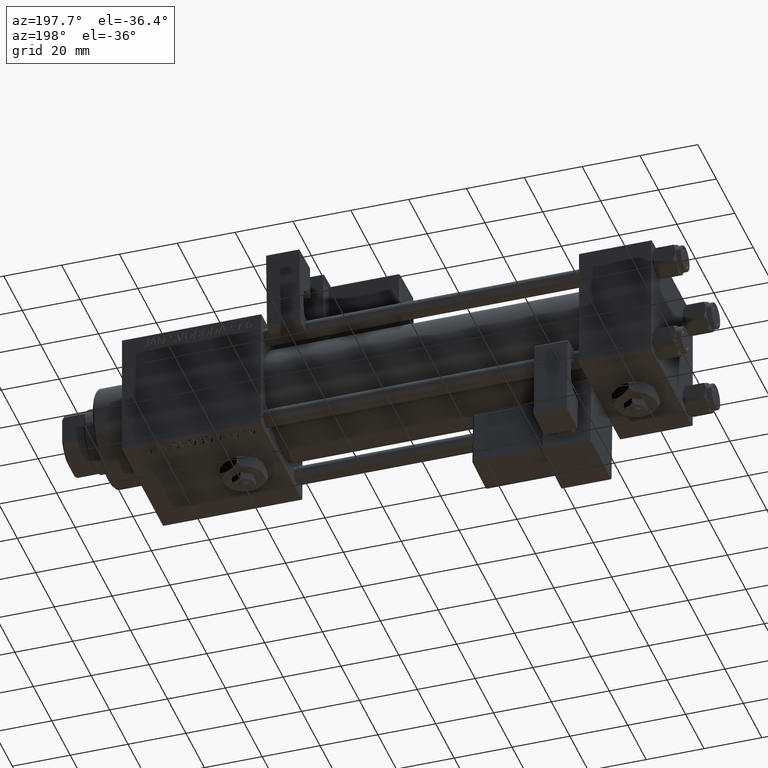
[diagram: clean part render]
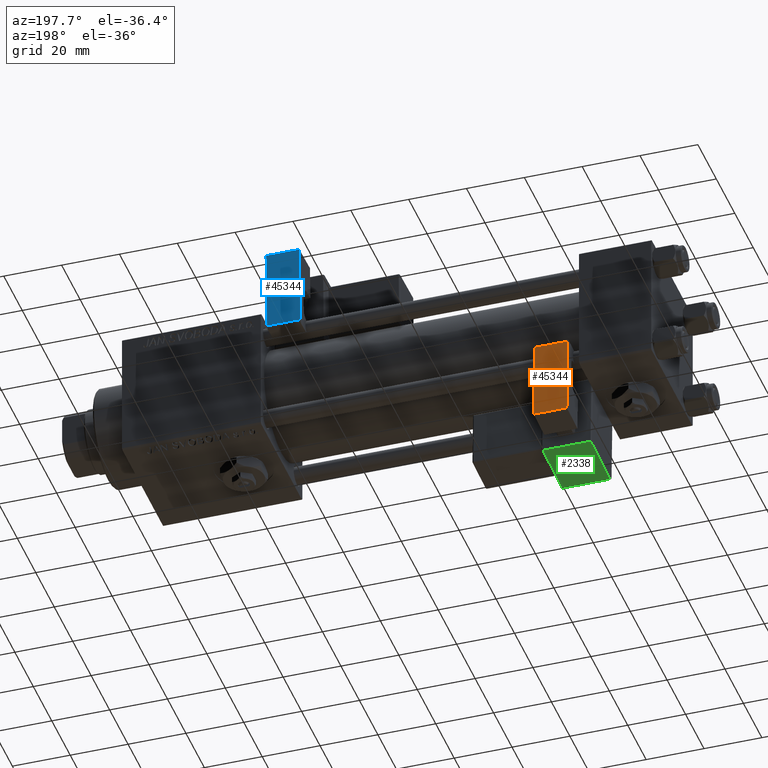
[diagram: same view with three faces highlighted in distinct colors, each labeled with its STEP entity id]
A machine part, auxiliary view with three faces highlighted in distinct colors.
Their STEP definitions:

[orange] entity #45344 — the highlighted planar face has unit normal (0, -0.9994, -0.0353).
#767 = ORIENTED_EDGE ( 'NONE', *, *, #35902, .T. ) ;
#816 = LINE ( 'NONE', #18019, #24796 ) ;
#1041 = LINE ( 'NONE', #5810, #28056 ) ;
#2816 = CARTESIAN_POINT ( 'NONE',  ( -5.750000000000000000, 5.750000000000000000, 0.000000000000000000 ) ) ;
#2833 = VERTEX_POINT ( 'NONE', #2816 ) ;
#4756 = VECTOR ( 'NONE', #49503, 1000.000000000000000 ) ;
#5810 = CARTESIAN_POINT ( 'NONE',  ( -5.750000000000000000, 5.750000000000000000, 28.00000000000000000 ) ) ;
#5894 = AXIS2_PLACEMENT_3D ( 'NONE', #28900, #50877, #37633 ) ;
#6966 = ORIENTED_EDGE ( 'NONE', *, *, #9716, .T. ) ;
#7157 = VERTEX_POINT ( 'NONE', #25572 ) ;
#8072 = CARTESIAN_POINT ( 'NONE',  ( 5.750000000000000000, 5.750000000000001776, 28.00000000000000000 ) ) ;
#9716 = EDGE_CURVE ( 'NONE', #7157, #2833, #26123, .T. ) ;
#11403 = PLANE ( 'NONE',  #5894 ) ;
#11967 = LINE ( 'NONE', #19608, #4756 ) ;
#17370 = DIRECTION ( 'NONE',  ( -1.000000000000000000, -1.508455196501571429E-16, -0.000000000000000000 ) ) ;
#17789 = EDGE_CURVE ( 'NONE', #32536, #35119, #1041, .T. ) ;
#18019 = CARTESIAN_POINT ( 'NONE',  ( 5.750000000000000000, 5.750000000000001776, 12.00000000000000000 ) ) ;
#19608 = CARTESIAN_POINT ( 'NONE',  ( -5.750000000000000000, 5.750000000000000000, 12.00000000000000000 ) ) ;
#20400 = EDGE_CURVE ( 'NONE', #32536, #2833, #11967, .T. ) ;
#22761 = DIRECTION ( 'NONE',  ( 1.000000000000000000, 1.508455196501571183E-16, -0.000000000000000000 ) ) ;
#24796 = VECTOR ( 'NONE', #48196, 1000.000000000000000 ) ;
#25572 = CARTESIAN_POINT ( 'NONE',  ( 5.750000000000000000, 5.750000000000001776, 0.000000000000000000 ) ) ;
#26123 = LINE ( 'NONE', #30640, #30581 ) ;
#28056 = VECTOR ( 'NONE', #22761, 1000.000000000000000 ) ;
#28272 = EDGE_LOOP ( 'NONE', ( #47524, #44509, #767, #6966 ) ) ;
#28900 = CARTESIAN_POINT ( 'NONE',  ( -5.750000000000000000, 5.750000000000000000, 12.00000000000000000 ) ) ;
#30581 = VECTOR ( 'NONE', #17370, 1000.000000000000000 ) ;
#30640 = CARTESIAN_POINT ( 'NONE',  ( -5.750000000000000000, 5.750000000000000000, 0.000000000000000000 ) ) ;
#32536 = VERTEX_POINT ( 'NONE', #41758 ) ;
#35119 = VERTEX_POINT ( 'NONE', #8072 ) ;
#35902 = EDGE_CURVE ( 'NONE', #35119, #7157, #816, .T. ) ;
#37633 = DIRECTION ( 'NONE',  ( 1.000000000000000000, 1.508455196501571183E-16, 0.000000000000000000 ) ) ;
#41758 = CARTESIAN_POINT ( 'NONE',  ( -5.750000000000000000, 5.750000000000000000, 28.00000000000000000 ) ) ;
#42420 = FACE_OUTER_BOUND ( 'NONE', #28272, .T. ) ;
#44509 = ORIENTED_EDGE ( 'NONE', *, *, #17789, .T. ) ;
#45344 = ADVANCED_FACE ( 'NONE', ( #42420 ), #11403, .F. ) ;
#47524 = ORIENTED_EDGE ( 'NONE', *, *, #20400, .F. ) ;
#48196 = DIRECTION ( 'NONE',  ( -0.000000000000000000, -0.000000000000000000, -1.000000000000000000 ) ) ;
#49503 = DIRECTION ( 'NONE',  ( -0.000000000000000000, -0.000000000000000000, -1.000000000000000000 ) ) ;
#50877 = DIRECTION ( 'NONE',  ( 1.508455196501571183E-16, -1.000000000000000000, 0.000000000000000000 ) ) ;

[blue] entity #45344 — the highlighted planar face has unit normal (-0, -0.9994, 0.0353).
#767 = ORIENTED_EDGE ( 'NONE', *, *, #35902, .T. ) ;
#816 = LINE ( 'NONE', #18019, #24796 ) ;
#1041 = LINE ( 'NONE', #5810, #28056 ) ;
#2816 = CARTESIAN_POINT ( 'NONE',  ( -5.750000000000000000, 5.750000000000000000, 0.000000000000000000 ) ) ;
#2833 = VERTEX_POINT ( 'NONE', #2816 ) ;
#4756 = VECTOR ( 'NONE', #49503, 1000.000000000000000 ) ;
#5810 = CARTESIAN_POINT ( 'NONE',  ( -5.750000000000000000, 5.750000000000000000, 28.00000000000000000 ) ) ;
#5894 = AXIS2_PLACEMENT_3D ( 'NONE', #28900, #50877, #37633 ) ;
#6966 = ORIENTED_EDGE ( 'NONE', *, *, #9716, .T. ) ;
#7157 = VERTEX_POINT ( 'NONE', #25572 ) ;
#8072 = CARTESIAN_POINT ( 'NONE',  ( 5.750000000000000000, 5.750000000000001776, 28.00000000000000000 ) ) ;
#9716 = EDGE_CURVE ( 'NONE', #7157, #2833, #26123, .T. ) ;
#11403 = PLANE ( 'NONE',  #5894 ) ;
#11967 = LINE ( 'NONE', #19608, #4756 ) ;
#17370 = DIRECTION ( 'NONE',  ( -1.000000000000000000, -1.508455196501571429E-16, -0.000000000000000000 ) ) ;
#17789 = EDGE_CURVE ( 'NONE', #32536, #35119, #1041, .T. ) ;
#18019 = CARTESIAN_POINT ( 'NONE',  ( 5.750000000000000000, 5.750000000000001776, 12.00000000000000000 ) ) ;
#19608 = CARTESIAN_POINT ( 'NONE',  ( -5.750000000000000000, 5.750000000000000000, 12.00000000000000000 ) ) ;
#20400 = EDGE_CURVE ( 'NONE', #32536, #2833, #11967, .T. ) ;
#22761 = DIRECTION ( 'NONE',  ( 1.000000000000000000, 1.508455196501571183E-16, -0.000000000000000000 ) ) ;
#24796 = VECTOR ( 'NONE', #48196, 1000.000000000000000 ) ;
#25572 = CARTESIAN_POINT ( 'NONE',  ( 5.750000000000000000, 5.750000000000001776, 0.000000000000000000 ) ) ;
#26123 = LINE ( 'NONE', #30640, #30581 ) ;
#28056 = VECTOR ( 'NONE', #22761, 1000.000000000000000 ) ;
#28272 = EDGE_LOOP ( 'NONE', ( #47524, #44509, #767, #6966 ) ) ;
#28900 = CARTESIAN_POINT ( 'NONE',  ( -5.750000000000000000, 5.750000000000000000, 12.00000000000000000 ) ) ;
#30581 = VECTOR ( 'NONE', #17370, 1000.000000000000000 ) ;
#30640 = CARTESIAN_POINT ( 'NONE',  ( -5.750000000000000000, 5.750000000000000000, 0.000000000000000000 ) ) ;
#32536 = VERTEX_POINT ( 'NONE', #41758 ) ;
#35119 = VERTEX_POINT ( 'NONE', #8072 ) ;
#35902 = EDGE_CURVE ( 'NONE', #35119, #7157, #816, .T. ) ;
#37633 = DIRECTION ( 'NONE',  ( 1.000000000000000000, 1.508455196501571183E-16, 0.000000000000000000 ) ) ;
#41758 = CARTESIAN_POINT ( 'NONE',  ( -5.750000000000000000, 5.750000000000000000, 28.00000000000000000 ) ) ;
#42420 = FACE_OUTER_BOUND ( 'NONE', #28272, .T. ) ;
#44509 = ORIENTED_EDGE ( 'NONE', *, *, #17789, .T. ) ;
#45344 = ADVANCED_FACE ( 'NONE', ( #42420 ), #11403, .F. ) ;
#47524 = ORIENTED_EDGE ( 'NONE', *, *, #20400, .F. ) ;
#48196 = DIRECTION ( 'NONE',  ( -0.000000000000000000, -0.000000000000000000, -1.000000000000000000 ) ) ;
#49503 = DIRECTION ( 'NONE',  ( -0.000000000000000000, -0.000000000000000000, -1.000000000000000000 ) ) ;
#50877 = DIRECTION ( 'NONE',  ( 1.508455196501571183E-16, -1.000000000000000000, 0.000000000000000000 ) ) ;

[green] entity #2338 — the highlighted planar face has unit normal (0, -0.0353, 0.9994).
#2338 = ADVANCED_FACE ( 'NONE', ( #45271 ), #29170, .F. ) ;
#2875 = VECTOR ( 'NONE', #52866, 1000.000000000000000 ) ;
#6260 = ORIENTED_EDGE ( 'NONE', *, *, #21433, .T. ) ;
#7018 = CARTESIAN_POINT ( 'NONE',  ( 8.750000000000003553, -33.25000000000000000, -1.000000000000000222 ) ) ;
#8605 = VECTOR ( 'NONE', #39337, 1000.000000000000000 ) ;
#10846 = VERTEX_POINT ( 'NONE', #50007 ) ;
#13270 = VERTEX_POINT ( 'NONE', #25835 ) ;
#14122 = VECTOR ( 'NONE', #46767, 1000.000000000000000 ) ;
#17304 = LINE ( 'NONE', #34516, #37226 ) ;
#18213 = VERTEX_POINT ( 'NONE', #51946 ) ;
#21433 = EDGE_CURVE ( 'NONE', #10846, #38315, #17304, .T. ) ;
#23260 = LINE ( 'NONE', #52893, #8605 ) ;
#23821 = DIRECTION ( 'NONE',  ( 0.000000000000000000, 0.000000000000000000, 1.000000000000000000 ) ) ;
#25835 = CARTESIAN_POINT ( 'NONE',  ( -8.250000000000003553, -33.25000000000000000, -1.000000000000000222 ) ) ;
#27536 = AXIS2_PLACEMENT_3D ( 'NONE', #46367, #23821, #36804 ) ;
#27722 = CARTESIAN_POINT ( 'NONE',  ( 8.250000000000003553, -12.25000000000000000, -1.000000000000000222 ) ) ;
#28026 = CARTESIAN_POINT ( 'NONE',  ( -8.250000000000003553, -33.75000000000000000, -1.000000000000000222 ) ) ;
#29170 = PLANE ( 'NONE',  #27536 ) ;
#30815 = ORIENTED_EDGE ( 'NONE', *, *, #47549, .T. ) ;
#32195 = EDGE_CURVE ( 'NONE', #13270, #10846, #35647, .T. ) ;
#34516 = CARTESIAN_POINT ( 'NONE',  ( 8.750000000000003553, -12.25000000000000000, -1.000000000000000222 ) ) ;
#35647 = LINE ( 'NONE', #28026, #2875 ) ;
#36804 = DIRECTION ( 'NONE',  ( 1.000000000000000000, 0.000000000000000000, -0.000000000000000000 ) ) ;
#37226 = VECTOR ( 'NONE', #51711, 1000.000000000000000 ) ;
#38315 = VERTEX_POINT ( 'NONE', #27722 ) ;
#39337 = DIRECTION ( 'NONE',  ( -0.000000000000000000, -1.000000000000000000, -0.000000000000000000 ) ) ;
#42270 = LINE ( 'NONE', #7018, #14122 ) ;
#42741 = ORIENTED_EDGE ( 'NONE', *, *, #32195, .T. ) ;
#45271 = FACE_OUTER_BOUND ( 'NONE', #47423, .T. ) ;
#46018 = EDGE_CURVE ( 'NONE', #38315, #18213, #23260, .T. ) ;
#46367 = CARTESIAN_POINT ( 'NONE',  ( 8.750000000000003553, -33.75000000000000000, -1.000000000000000222 ) ) ;
#46767 = DIRECTION ( 'NONE',  ( -1.000000000000000000, -0.000000000000000000, 0.000000000000000000 ) ) ;
#47423 = EDGE_LOOP ( 'NONE', ( #6260, #53876, #30815, #42741 ) ) ;
#47549 = EDGE_CURVE ( 'NONE', #18213, #13270, #42270, .T. ) ;
#50007 = CARTESIAN_POINT ( 'NONE',  ( -8.250000000000003553, -12.25000000000000000, -1.000000000000000222 ) ) ;
#51711 = DIRECTION ( 'NONE',  ( 1.000000000000000000, -0.000000000000000000, 0.000000000000000000 ) ) ;
#51946 = CARTESIAN_POINT ( 'NONE',  ( 8.250000000000003553, -33.25000000000000000, -1.000000000000000222 ) ) ;
#52866 = DIRECTION ( 'NONE',  ( -0.000000000000000000, 1.000000000000000000, 0.000000000000000000 ) ) ;
#52893 = CARTESIAN_POINT ( 'NONE',  ( 8.250000000000003553, -33.75000000000000000, -1.000000000000000222 ) ) ;
#53876 = ORIENTED_EDGE ( 'NONE', *, *, #46018, .T. ) ;